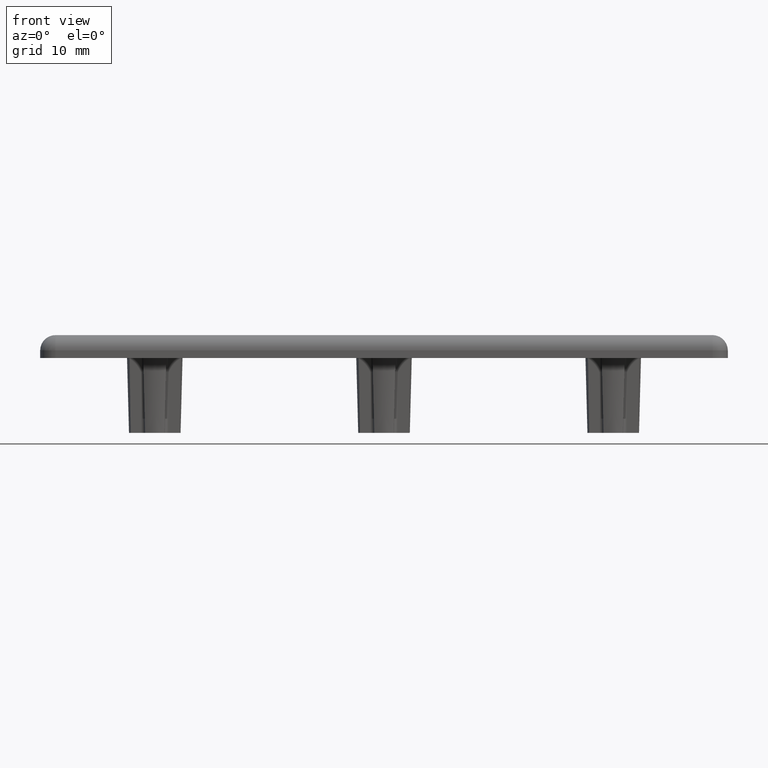
[diagram: clean part render]
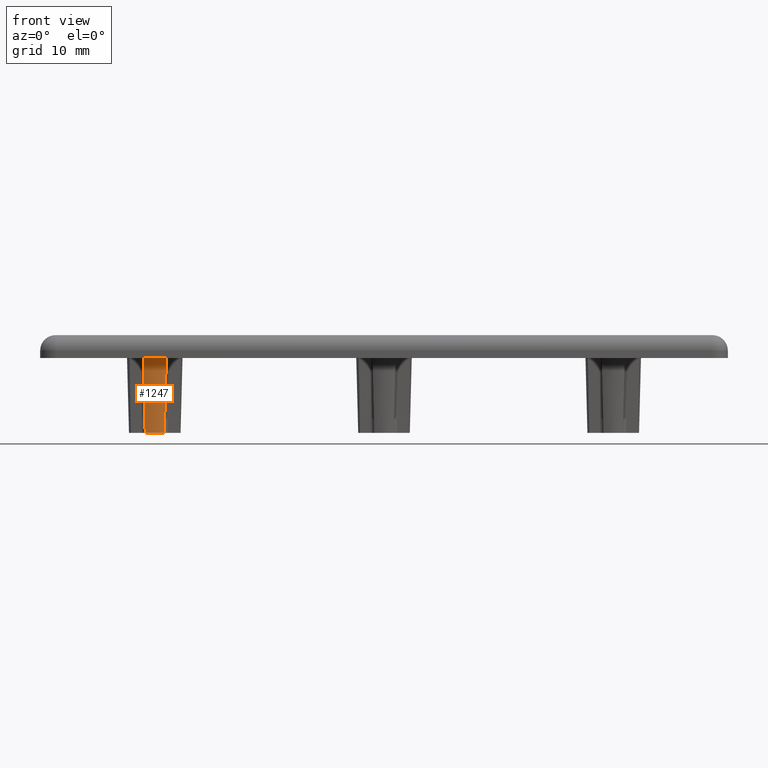
[diagram: same view with one face highlighted and labeled with its STEP entity id]
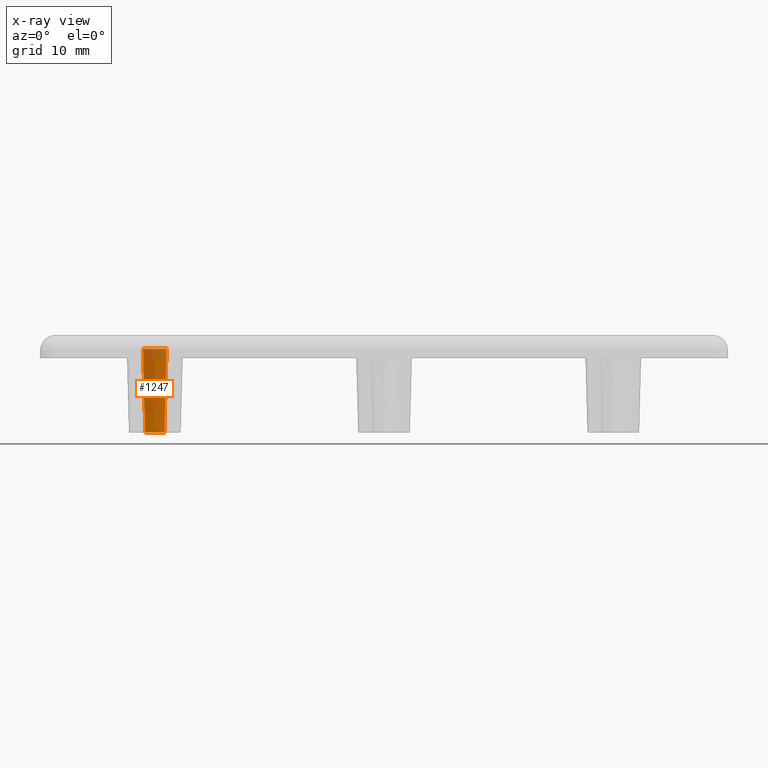
[diagram: x-ray of the same camera — body ghosted, the highlighted face saturated]
A machine part, front view. The second image highlights one B-rep face of the part: STEP entity #1247.
The next image is the same camera in x-ray: the body ghosted, the highlighted face saturated — about 12% of this face is hidden behind the body in this view.
In plain terms, the highlighted conical surface has half-angle 1.5 deg.
Its self-contained STEP definition (entity closure, byte-faithful):
#33=(
BOUNDED_CURVE()
B_SPLINE_CURVE(2,(#1879,#1880,#1881),.UNSPECIFIED.,.F.,.F.)
B_SPLINE_CURVE_WITH_KNOTS((3,3),(0.201847277910584,1.32441866958039),
 .UNSPECIFIED.)
CURVE()
GEOMETRIC_REPRESENTATION_ITEM()
RATIONAL_B_SPLINE_CURVE((1.,1.,1.))
REPRESENTATION_ITEM('')
);
#34=(
BOUNDED_CURVE()
B_SPLINE_CURVE(2,(#1887,#1888,#1889),.UNSPECIFIED.,.F.,.F.)
B_SPLINE_CURVE_WITH_KNOTS((3,3),(0.20184727791059,1.32441866958041),
 .UNSPECIFIED.)
CURVE()
GEOMETRIC_REPRESENTATION_ITEM()
RATIONAL_B_SPLINE_CURVE((1.,1.,1.))
REPRESENTATION_ITEM('')
);
#99=FACE_OUTER_BOUND('',#173,.T.);
#173=EDGE_LOOP('',(#857,#858,#859,#860));
#459=CIRCLE('',#1330,3.66304513726106);
#460=CIRCLE('',#1331,3.375);
#529=VERTEX_POINT('',#1876);
#530=VERTEX_POINT('',#1878);
#531=VERTEX_POINT('',#1884);
#532=VERTEX_POINT('',#1886);
#658=EDGE_CURVE('',#530,#529,#33,.T.);
#660=EDGE_CURVE('',#531,#529,#459,.T.);
#661=EDGE_CURVE('',#532,#531,#34,.T.);
#662=EDGE_CURVE('',#530,#532,#460,.T.);
#857=ORIENTED_EDGE('',*,*,#660,.F.);
#858=ORIENTED_EDGE('',*,*,#661,.F.);
#859=ORIENTED_EDGE('',*,*,#662,.F.);
#860=ORIENTED_EDGE('',*,*,#658,.T.);
#1220=CONICAL_SURFACE('',#1329,3.375,1.5);
#1247=ADVANCED_FACE('',(#99),#1220,.T.);
#1329=AXIS2_PLACEMENT_3D('',#1883,#1491,#1492);
#1330=AXIS2_PLACEMENT_3D('',#1885,#1493,#1494);
#1331=AXIS2_PLACEMENT_3D('',#1890,#1495,#1496);
#1491=DIRECTION('center_axis',(0.,0.,1.));
#1492=DIRECTION('ref_axis',(-1.,0.,0.));
#1493=DIRECTION('center_axis',(0.,0.,1.));
#1494=DIRECTION('ref_axis',(-1.,0.,0.));
#1495=DIRECTION('center_axis',(0.,0.,-1.));
#1496=DIRECTION('ref_axis',(-1.,0.,0.));
#1876=CARTESIAN_POINT('',(-28.4619548627389,-3.3245024941123,1.2));
#1878=CARTESIAN_POINT('',(-28.75,-3.13498405099611,-9.8));
#1879=CARTESIAN_POINT('Ctrl Pts',(-28.7499999999998,-3.13498405099638,-9.79999999999157));
#1880=CARTESIAN_POINT('Ctrl Pts',(-28.6102029890553,-3.22974327255073,-4.46136753769194));
#1881=CARTESIAN_POINT('Ctrl Pts',(-28.4619548627389,-3.3245024941123,1.2));
#1883=CARTESIAN_POINT('Origin',(-30.,0.,-9.8));
#1884=CARTESIAN_POINT('',(-31.5380451372611,-3.3245024941123,1.2));
#1885=CARTESIAN_POINT('Origin',(-30.,0.,1.2));
#1886=CARTESIAN_POINT('',(-31.25,-3.13498405099611,-9.8));
#1887=CARTESIAN_POINT('Ctrl Pts',(-31.2500000000002,-3.13498405099638,-9.79999999999157));
#1888=CARTESIAN_POINT('Ctrl Pts',(-31.3897970109447,-3.22974327255073,-4.46136753769202));
#1889=CARTESIAN_POINT('Ctrl Pts',(-31.5380451372611,-3.3245024941123,1.2));
#1890=CARTESIAN_POINT('Origin',(-30.,0.,-9.8));